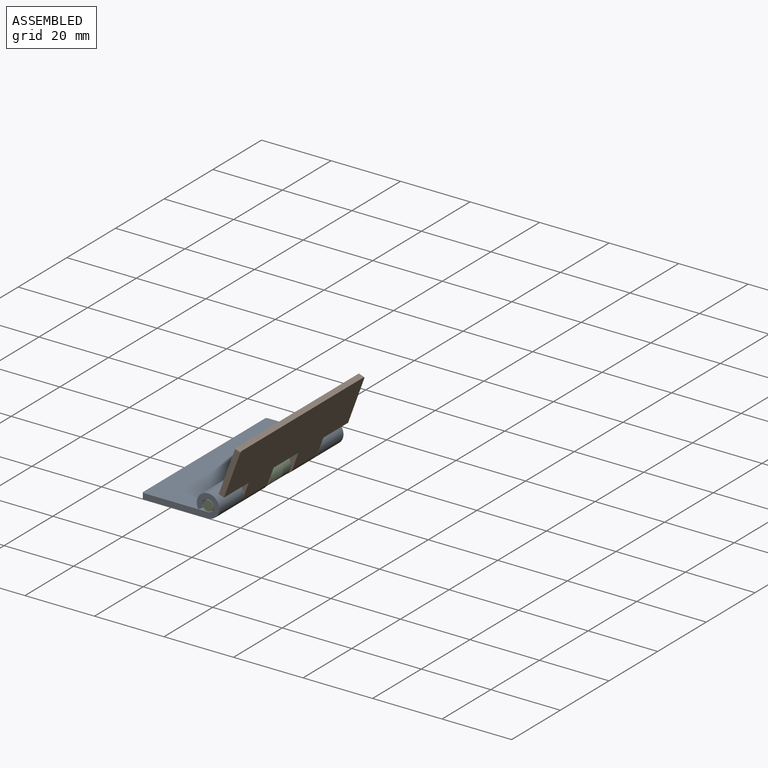
[diagram: assembled view]
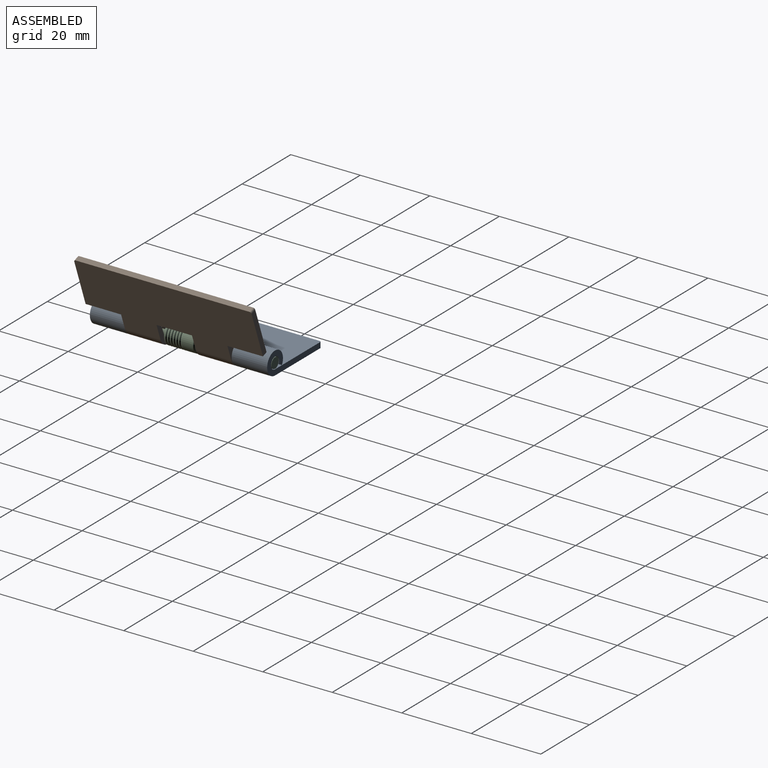
[diagram: assembled view, second angle]
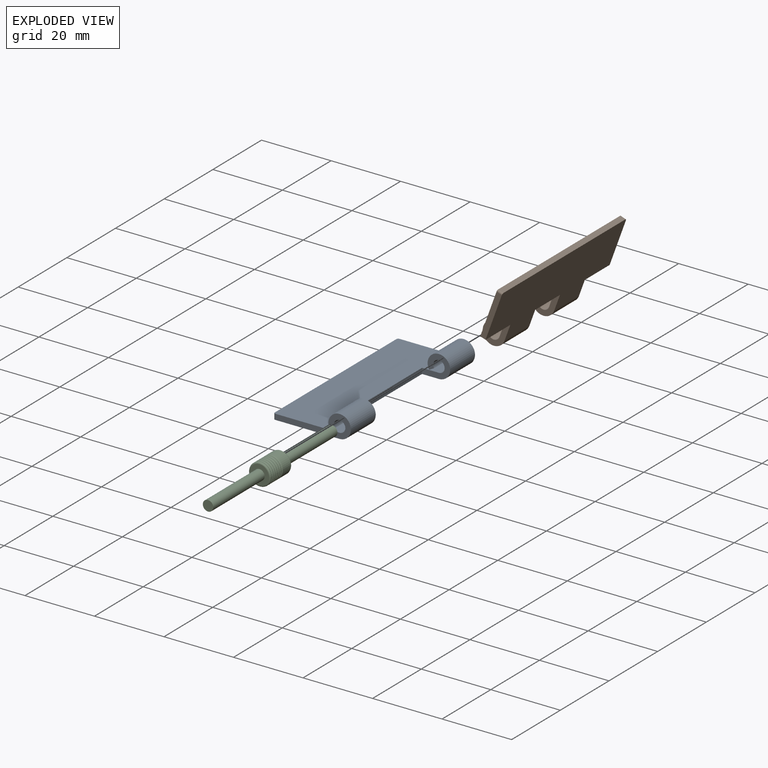
[diagram: exploded view]
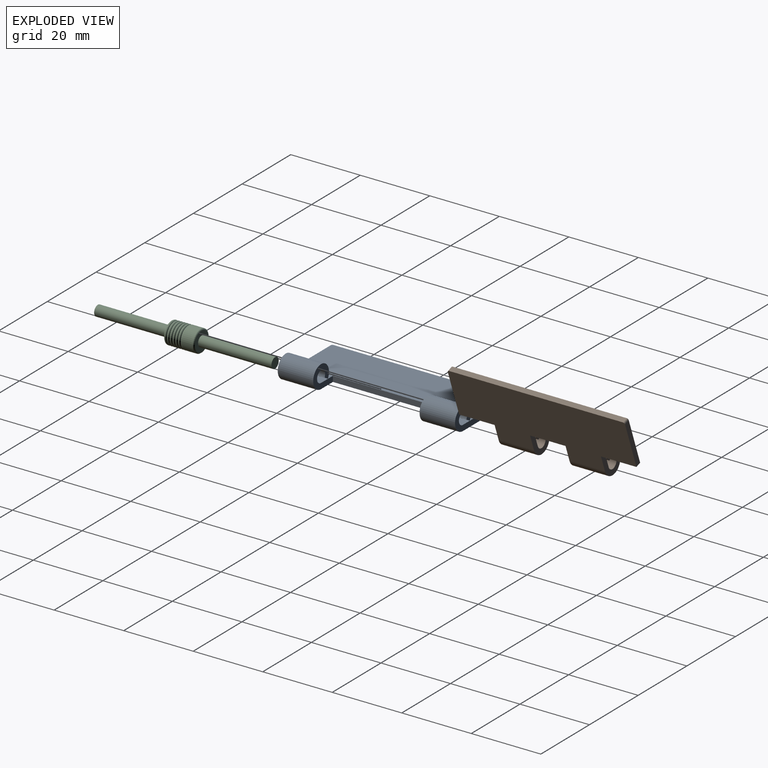
[diagram: exploded view, second angle]
ASSEMBLY  parts=3 mates=2
PART A: 16 faces, bbox 22.3x51x6.5 mm
  f0: plane 50x1.6mm, normal (-1,0,0), area 80mm2, adj f2,f6,f14,f15
  f1: plane 21.75x6.5mm, normal (0,-1,0), area 50.1mm2, adj f2,f3,f4,f5,f6,f14
  f2: plane 51x19mm, normal (0,0,1), area 820.5mm2, adj f0,f1,f3,f7,f10,f11,f12,f13
  f3: cylinder r=1.65mm len=10.2mm, axis (0,-1,0), area 88.1mm2, adj f1,f2,f4,f13
  f4: plane 10.2x1.39mm, normal (0.5,0,-0.87), area 16.3mm2, adj f1,f3,f5,f13
  f5: cylinder r=3.25mm len=10.2mm, axis (0,-1,0), area 173.6mm2, adj f1,f4,f6,f13
  f6: plane 51x19mm, normal (0,0,-1), area 820.5mm2, adj f0,f1,f5,f9,f10,f11,f12,f13
  f7: cylinder r=1.65mm len=10.2mm, axis (0,-1,0), area 88.1mm2, adj f2,f8,f10,f11
  f8: plane 10.2x1.39mm, normal (0.5,0,-0.87), area 16.3mm2, adj f7,f9,f10,f11
  f9: cylinder r=3.25mm len=10.2mm, axis (0,-1,0), area 173.6mm2, adj f6,f8,f10,f11
  f10: plane 21.75x6.5mm, normal (0,1,0), area 50.1mm2, adj f2,f6,f7,f8,f9,f15
  f11: plane 8.1x6.5mm, normal (0,-1,0), area 28.3mm2, adj f2,f6,f7,f8,f9,f12
  f12: plane 30.6x1.6mm, normal (1,0,0), area 49mm2, adj f2,f6,f11,f13
  f13: plane 8.1x6.5mm, normal (0,1,0), area 28.3mm2, adj f2,f3,f4,f5,f6,f12
  f14: cylinder r=0.5mm len=1.6mm, axis (0,0,-1), area 1.3mm2, adj f0,f1,f2,f6
  f15: cylinder r=0.5mm len=1.6mm, axis (0,0,-1), area 1.3mm2, adj f0,f2,f6,f10
PART B: 20 faces, bbox 22.3x51x6.5 mm
  f0: plane 50x1.6mm, normal (1,0,0), area 80mm2, adj f1,f5,f18,f19
  f1: plane 51x19mm, normal (0,0,-1), area 820.5mm2, adj f0,f2,f6,f7,f10,f11,f12,f13
  f2: cylinder r=3.25mm len=10.2mm, axis (0,-1,0), area 173.6mm2, adj f1,f3,f14,f16
  f3: plane 10.2x1.39mm, normal (-0.5,0,-0.87), area 16.3mm2, adj f2,f4,f14,f16
  f4: cylinder r=1.65mm len=10.2mm, axis (0,-1,0), area 88.1mm2, adj f3,f5,f14,f16
  f5: plane 51x19mm, normal (0,0,1), area 820.5mm2, adj f0,f4,f6,f9,f10,f11,f12,f13
  f6: plane 13.65x1.6mm, normal (0,-1,0), area 21.8mm2, adj f1,f5,f17,f18
  f7: cylinder r=3.25mm len=10.2mm, axis (0,-1,0), area 173.6mm2, adj f1,f8,f11,f13
  f8: plane 10.2x1.39mm, normal (-0.5,0,-0.87), area 16.3mm2, adj f7,f9,f11,f13
  f9: cylinder r=1.65mm len=10.2mm, axis (0,-1,0), area 88.1mm2, adj f5,f8,f11,f13
  f10: plane 13.65x1.6mm, normal (0,1,0), area 21.8mm2, adj f1,f5,f12,f19
  f11: plane 8.1x6.5mm, normal (0,1,0), area 28.3mm2, adj f1,f5,f7,f8,f9,f12
  f12: plane 10.2x1.6mm, normal (-1,0,0), area 16.3mm2, adj f1,f5,f10,f11
  f13: plane 8.1x6.5mm, normal (0,-1,0), area 28.3mm2, adj f1,f5,f7,f8,f9,f15
  f14: plane 8.1x6.5mm, normal (0,1,0), area 28.3mm2, adj f1,f2,f3,f4,f5,f15
  f15: plane 10.2x1.6mm, normal (-1,0,0), area 16.3mm2, adj f1,f5,f13,f14
  f16: plane 8.1x6.5mm, normal (0,-1,0), area 28.3mm2, adj f1,f2,f3,f4,f5,f17
  f17: plane 10.2x1.6mm, normal (-1,0,0), area 16.3mm2, adj f1,f5,f6,f16
  f18: cylinder r=0.5mm len=1.6mm, axis (0,0,-1), area 1.3mm2, adj f0,f1,f5,f6
  f19: cylinder r=0.5mm len=1.6mm, axis (0,0,-1), area 1.3mm2, adj f0,f1,f5,f10
PART C: 15 faces, bbox 6.8x51x6.8 mm
  f0: cylinder r=1.5mm len=21.1mm, axis (0,-1,0), area 198.9mm2, adj f1,f2
  f1: plane 3x3mm, normal (0,1,0), area 7.1mm2, adj f0
  f2: plane 5.5x5.5mm, normal (0,1,0), area 16.7mm2, adj f0,f3
  f3: torus R=2.75mm, axis (0,-1,0), area 11.9mm2, adj f2,f4
  f4: cylinder r=3.15mm len=6.3mm, axis (0,-1,0), area 63.3mm2, adj f3,f5
  f5: torus R=2.75mm, axis (0,-1,0), area 11.9mm2, adj f4,f6
  f6: torus R=2.75mm, axis (0,-1,0), area 23.7mm2, adj f5,f7
  f7: torus R=2.75mm, axis (0,-1,0), area 23.7mm2, adj f6,f8
  f8: torus R=2.75mm, axis (0,-1,0), area 23.7mm2, adj f7,f9
  f9: torus R=2.75mm, axis (0,-1,0), area 23.7mm2, adj f8,f10
  f10: torus R=2.75mm, axis (0,-1,0), area 23.7mm2, adj f9,f11
  f11: torus R=2.75mm, axis (0,-1,0), area 23.7mm2, adj f10,f12
  f12: plane 5.5x5.5mm, normal (0,-1,0), area 16.7mm2, adj f11,f14
  f13: plane 3x3mm, normal (0,-1,0), area 7.1mm2, adj f14
  f14: cylinder r=1.5mm len=21.1mm, axis (0,-1,0), area 198.9mm2, adj f12,f13
PLACE A t=(-11.48,0,-12.91)mm fixed
PLACE B rot(axis=(0,-1,0),70deg) t=(-11.48,-0.2,-12.91)mm
PLACE C t=(-11.48,0,-12.91)mm
MATE cylindrical B.f4 <-> C.f0  axis (0,-1,0) through (-11.48,-10.4,-12.91)mm
MATE fastened C.f0 <-> A.f5  axis (0,-1,0) through (-11.48,-25.5,-12.91)mm
